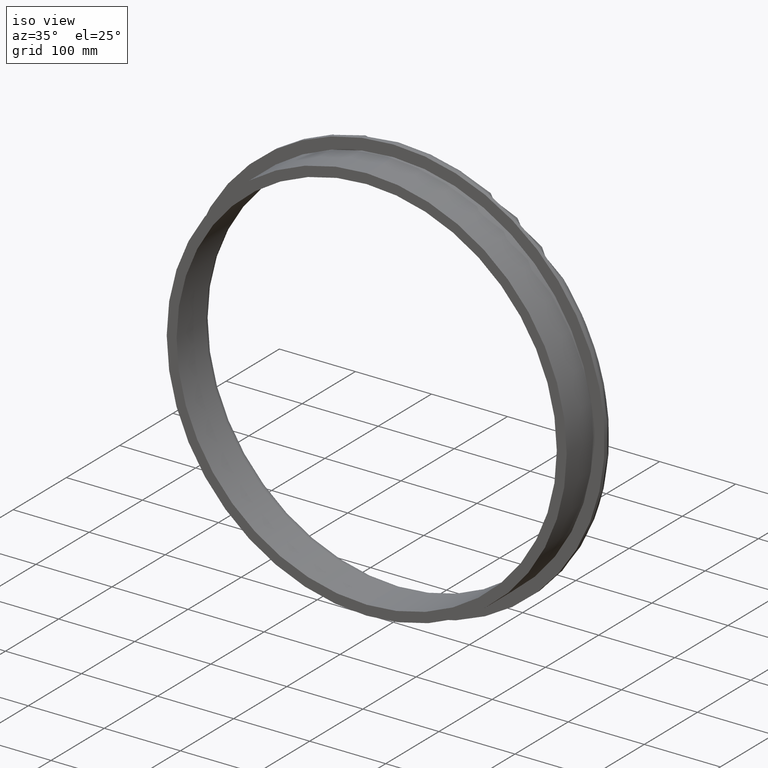
[diagram: clean part render]
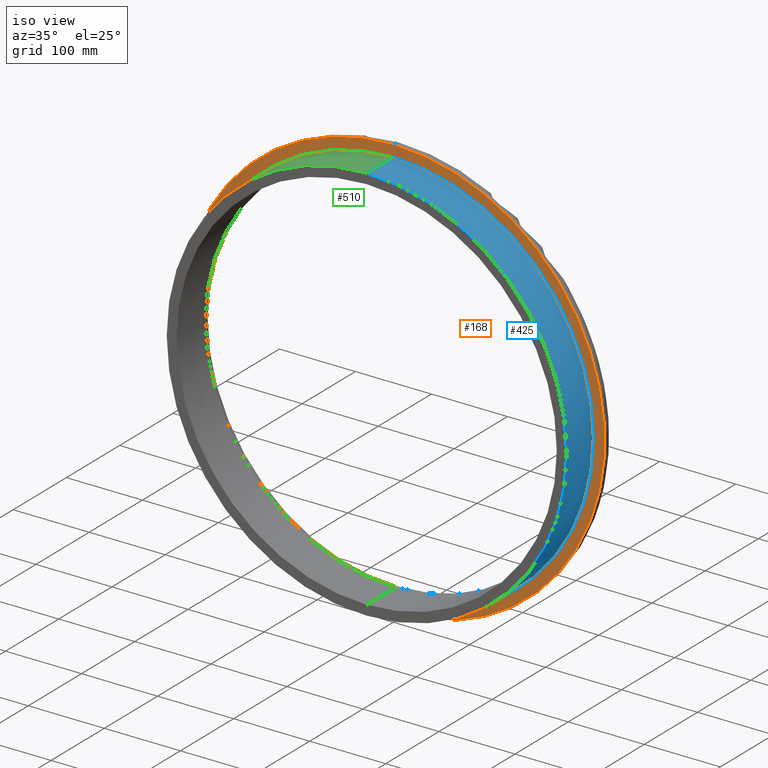
[diagram: same view with three faces highlighted in distinct colors, each labeled with its STEP entity id]
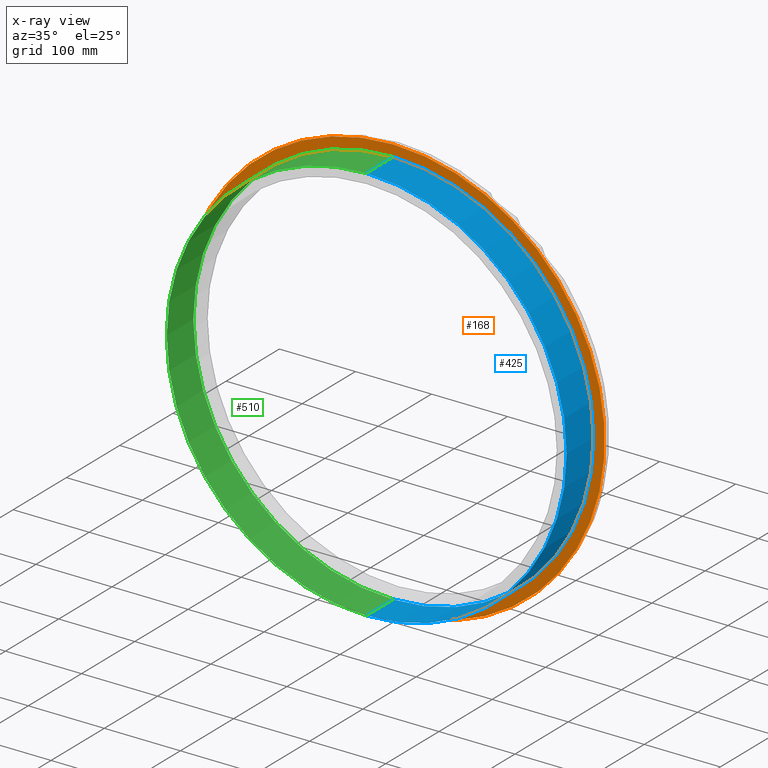
[diagram: x-ray of the same camera — body ghosted, the three highlighted faces saturated]
A machine part, iso view with three faces highlighted in distinct colors.
The next image is the same camera in x-ray (body ghosted, the three faces saturated) — at least one of them is partly hidden behind the body in this view.
Their STEP definitions:

[orange] entity #168 — the highlighted planar face has unit normal (0, 1, 0).
#8 = DIRECTION ( 'NONE',  ( 0.0000000000000000000, -0.0000000000000000000, 1.000000000000000000 ) ) ;
#27 = CIRCLE ( 'NONE', #351, 278.0000000000000000 ) ;
#46 = AXIS2_PLACEMENT_3D ( 'NONE', #275, #450, #410 ) ;
#52 = CARTESIAN_POINT ( 'NONE',  ( 0.0000000000000000000, 0.0000000000000000000, 0.0000000000000000000 ) ) ;
#56 = CARTESIAN_POINT ( 'NONE',  ( 0.0000000000000000000, 0.0000000000000000000, 0.0000000000000000000 ) ) ;
#77 = ORIENTED_EDGE ( 'NONE', *, *, #304, .F. ) ;
#87 = ORIENTED_EDGE ( 'NONE', *, *, #159, .T. ) ;
#117 = EDGE_CURVE ( 'NONE', #405, #456, #150, .T. ) ;
#119 = AXIS2_PLACEMENT_3D ( 'NONE', #52, #407, #310 ) ;
#131 = DIRECTION ( 'NONE',  ( 0.0000000000000000000, 1.000000000000000000, 0.0000000000000000000 ) ) ;
#150 = CIRCLE ( 'NONE', #302, 278.0000000000000000 ) ;
#159 = EDGE_CURVE ( 'NONE', #228, #330, #300, .T. ) ;
#168 = ADVANCED_FACE ( 'NONE', ( #364, #178 ), #525, .F. ) ;
#178 = FACE_OUTER_BOUND ( 'NONE', #183, .T. ) ;
#183 = EDGE_LOOP ( 'NONE', ( #461, #77 ) ) ;
#228 = VERTEX_POINT ( 'NONE', #520 ) ;
#231 = DIRECTION ( 'NONE',  ( 0.0000000000000000000, 0.0000000000000000000, 1.000000000000000000 ) ) ;
#240 = CARTESIAN_POINT ( 'NONE',  ( 0.0000000000000000000, 0.0000000000000000000, 0.0000000000000000000 ) ) ;
#246 = EDGE_CURVE ( 'NONE', #330, #228, #423, .T. ) ;
#272 = DIRECTION ( 'NONE',  ( 0.0000000000000000000, 1.000000000000000000, 0.0000000000000000000 ) ) ;
#275 = CARTESIAN_POINT ( 'NONE',  ( 0.0000000000000000000, 0.0000000000000000000, 0.0000000000000000000 ) ) ;
#300 = CIRCLE ( 'NONE', #46, 263.0000000000000568 ) ;
#302 = AXIS2_PLACEMENT_3D ( 'NONE', #56, #131, #231 ) ;
#304 = EDGE_CURVE ( 'NONE', #456, #405, #27, .T. ) ;
#310 = DIRECTION ( 'NONE',  ( 0.0000000000000000000, 0.0000000000000000000, 1.000000000000000000 ) ) ;
#317 = ORIENTED_EDGE ( 'NONE', *, *, #246, .T. ) ;
#327 = CARTESIAN_POINT ( 'NONE',  ( 0.0000000000000000000, 0.0000000000000000000, 263.0000000000000568 ) ) ;
#330 = VERTEX_POINT ( 'NONE', #327 ) ;
#334 = DIRECTION ( 'NONE',  ( 0.0000000000000000000, 0.0000000000000000000, 1.000000000000000000 ) ) ;
#351 = AXIS2_PLACEMENT_3D ( 'NONE', #240, #528, #334 ) ;
#364 = FACE_BOUND ( 'NONE', #373, .T. ) ;
#373 = EDGE_LOOP ( 'NONE', ( #317, #87 ) ) ;
#382 = AXIS2_PLACEMENT_3D ( 'NONE', #404, #272, #8 ) ;
#404 = CARTESIAN_POINT ( 'NONE',  ( 0.0000000000000000000, 0.0000000000000000000, 0.0000000000000000000 ) ) ;
#405 = VERTEX_POINT ( 'NONE', #454 ) ;
#407 = DIRECTION ( 'NONE',  ( 0.0000000000000000000, 1.000000000000000000, 0.0000000000000000000 ) ) ;
#410 = DIRECTION ( 'NONE',  ( 0.0000000000000000000, 0.0000000000000000000, 1.000000000000000000 ) ) ;
#423 = CIRCLE ( 'NONE', #119, 263.0000000000000568 ) ;
#450 = DIRECTION ( 'NONE',  ( 0.0000000000000000000, 1.000000000000000000, 0.0000000000000000000 ) ) ;
#454 = CARTESIAN_POINT ( 'NONE',  ( 0.0000000000000000000, 0.0000000000000000000, -278.0000000000000000 ) ) ;
#456 = VERTEX_POINT ( 'NONE', #518 ) ;
#461 = ORIENTED_EDGE ( 'NONE', *, *, #117, .F. ) ;
#518 = CARTESIAN_POINT ( 'NONE',  ( 3.404518101629642167E-14, 0.0000000000000000000, 278.0000000000000000 ) ) ;
#520 = CARTESIAN_POINT ( 'NONE',  ( 3.220821081757540076E-14, 0.0000000000000000000, -263.0000000000000568 ) ) ;
#525 = PLANE ( 'NONE',  #382 ) ;
#528 = DIRECTION ( 'NONE',  ( 0.0000000000000000000, 1.000000000000000000, 0.0000000000000000000 ) ) ;

[blue] entity #425 — the highlighted cylindrical surface (partial cylindrical patch) has radius 263 mm, axis along (0, 1, 0).
#1 = LINE ( 'NONE', #325, #536 ) ;
#5 = LINE ( 'NONE', #177, #359 ) ;
#17 = CIRCLE ( 'NONE', #515, 263.0000000000000568 ) ;
#51 = EDGE_CURVE ( 'NONE', #284, #258, #17, .T. ) ;
#52 = CARTESIAN_POINT ( 'NONE',  ( 0.0000000000000000000, 0.0000000000000000000, 0.0000000000000000000 ) ) ;
#84 = CARTESIAN_POINT ( 'NONE',  ( 3.220821081757540076E-14, -50.00000000000000000, -263.0000000000000568 ) ) ;
#99 = CARTESIAN_POINT ( 'NONE',  ( 0.0000000000000000000, -50.00000000000000000, 0.0000000000000000000 ) ) ;
#119 = AXIS2_PLACEMENT_3D ( 'NONE', #52, #407, #310 ) ;
#126 = DIRECTION ( 'NONE',  ( 0.0000000000000000000, 1.000000000000000000, 0.0000000000000000000 ) ) ;
#132 = EDGE_CURVE ( 'NONE', #284, #330, #1, .T. ) ;
#152 = EDGE_CURVE ( 'NONE', #258, #228, #5, .T. ) ;
#154 = ORIENTED_EDGE ( 'NONE', *, *, #246, .F. ) ;
#177 = CARTESIAN_POINT ( 'NONE',  ( 3.220821081757540076E-14, -50.00000000000000000, -263.0000000000000568 ) ) ;
#180 = DIRECTION ( 'NONE',  ( 0.0000000000000000000, 1.000000000000000000, 0.0000000000000000000 ) ) ;
#184 = ORIENTED_EDGE ( 'NONE', *, *, #132, .F. ) ;
#187 = AXIS2_PLACEMENT_3D ( 'NONE', #99, #416, #459 ) ;
#190 = ORIENTED_EDGE ( 'NONE', *, *, #51, .T. ) ;
#228 = VERTEX_POINT ( 'NONE', #520 ) ;
#246 = EDGE_CURVE ( 'NONE', #330, #228, #423, .T. ) ;
#258 = VERTEX_POINT ( 'NONE', #84 ) ;
#279 = DIRECTION ( 'NONE',  ( 0.0000000000000000000, 1.000000000000000000, 0.0000000000000000000 ) ) ;
#284 = VERTEX_POINT ( 'NONE', #406 ) ;
#310 = DIRECTION ( 'NONE',  ( 0.0000000000000000000, 0.0000000000000000000, 1.000000000000000000 ) ) ;
#314 = DIRECTION ( 'NONE',  ( 0.0000000000000000000, 0.0000000000000000000, 1.000000000000000000 ) ) ;
#321 = ORIENTED_EDGE ( 'NONE', *, *, #152, .T. ) ;
#325 = CARTESIAN_POINT ( 'NONE',  ( 0.0000000000000000000, -50.00000000000000000, 263.0000000000000568 ) ) ;
#327 = CARTESIAN_POINT ( 'NONE',  ( 0.0000000000000000000, 0.0000000000000000000, 263.0000000000000568 ) ) ;
#330 = VERTEX_POINT ( 'NONE', #327 ) ;
#333 = EDGE_LOOP ( 'NONE', ( #190, #321, #154, #184 ) ) ;
#359 = VECTOR ( 'NONE', #279, 1000.000000000000000 ) ;
#383 = CYLINDRICAL_SURFACE ( 'NONE', #187, 263.0000000000000568 ) ;
#406 = CARTESIAN_POINT ( 'NONE',  ( 0.0000000000000000000, -50.00000000000000000, 263.0000000000000568 ) ) ;
#407 = DIRECTION ( 'NONE',  ( 0.0000000000000000000, 1.000000000000000000, 0.0000000000000000000 ) ) ;
#416 = DIRECTION ( 'NONE',  ( 0.0000000000000000000, 1.000000000000000000, 0.0000000000000000000 ) ) ;
#423 = CIRCLE ( 'NONE', #119, 263.0000000000000568 ) ;
#425 = ADVANCED_FACE ( 'NONE', ( #457 ), #383, .T. ) ;
#457 = FACE_OUTER_BOUND ( 'NONE', #333, .T. ) ;
#459 = DIRECTION ( 'NONE',  ( 0.0000000000000000000, 0.0000000000000000000, 1.000000000000000000 ) ) ;
#483 = CARTESIAN_POINT ( 'NONE',  ( 0.0000000000000000000, -50.00000000000000000, 0.0000000000000000000 ) ) ;
#515 = AXIS2_PLACEMENT_3D ( 'NONE', #483, #126, #314 ) ;
#520 = CARTESIAN_POINT ( 'NONE',  ( 3.220821081757540076E-14, 0.0000000000000000000, -263.0000000000000568 ) ) ;
#536 = VECTOR ( 'NONE', #180, 1000.000000000000000 ) ;

[green] entity #510 — the highlighted cylindrical surface (partial cylindrical patch) has radius 263 mm, axis along (0, 1, 0).
#1 = LINE ( 'NONE', #325, #536 ) ;
#5 = LINE ( 'NONE', #177, #359 ) ;
#13 = DIRECTION ( 'NONE',  ( 0.0000000000000000000, 1.000000000000000000, 0.0000000000000000000 ) ) ;
#46 = AXIS2_PLACEMENT_3D ( 'NONE', #275, #450, #410 ) ;
#49 = CARTESIAN_POINT ( 'NONE',  ( 0.0000000000000000000, -50.00000000000000000, 0.0000000000000000000 ) ) ;
#55 = DIRECTION ( 'NONE',  ( 0.0000000000000000000, 1.000000000000000000, 0.0000000000000000000 ) ) ;
#73 = AXIS2_PLACEMENT_3D ( 'NONE', #49, #55, #521 ) ;
#84 = CARTESIAN_POINT ( 'NONE',  ( 3.220821081757540076E-14, -50.00000000000000000, -263.0000000000000568 ) ) ;
#97 = ORIENTED_EDGE ( 'NONE', *, *, #445, .T. ) ;
#132 = EDGE_CURVE ( 'NONE', #284, #330, #1, .T. ) ;
#152 = EDGE_CURVE ( 'NONE', #258, #228, #5, .T. ) ;
#159 = EDGE_CURVE ( 'NONE', #228, #330, #300, .T. ) ;
#177 = CARTESIAN_POINT ( 'NONE',  ( 3.220821081757540076E-14, -50.00000000000000000, -263.0000000000000568 ) ) ;
#180 = DIRECTION ( 'NONE',  ( 0.0000000000000000000, 1.000000000000000000, 0.0000000000000000000 ) ) ;
#185 = DIRECTION ( 'NONE',  ( 0.0000000000000000000, 0.0000000000000000000, 1.000000000000000000 ) ) ;
#228 = VERTEX_POINT ( 'NONE', #520 ) ;
#258 = VERTEX_POINT ( 'NONE', #84 ) ;
#275 = CARTESIAN_POINT ( 'NONE',  ( 0.0000000000000000000, 0.0000000000000000000, 0.0000000000000000000 ) ) ;
#277 = EDGE_LOOP ( 'NONE', ( #490, #97, #496, #452 ) ) ;
#279 = DIRECTION ( 'NONE',  ( 0.0000000000000000000, 1.000000000000000000, 0.0000000000000000000 ) ) ;
#284 = VERTEX_POINT ( 'NONE', #406 ) ;
#300 = CIRCLE ( 'NONE', #46, 263.0000000000000568 ) ;
#325 = CARTESIAN_POINT ( 'NONE',  ( 0.0000000000000000000, -50.00000000000000000, 263.0000000000000568 ) ) ;
#327 = CARTESIAN_POINT ( 'NONE',  ( 0.0000000000000000000, 0.0000000000000000000, 263.0000000000000568 ) ) ;
#330 = VERTEX_POINT ( 'NONE', #327 ) ;
#359 = VECTOR ( 'NONE', #279, 1000.000000000000000 ) ;
#363 = CYLINDRICAL_SURFACE ( 'NONE', #73, 263.0000000000000568 ) ;
#367 = FACE_OUTER_BOUND ( 'NONE', #277, .T. ) ;
#375 = CARTESIAN_POINT ( 'NONE',  ( 0.0000000000000000000, -50.00000000000000000, 0.0000000000000000000 ) ) ;
#406 = CARTESIAN_POINT ( 'NONE',  ( 0.0000000000000000000, -50.00000000000000000, 263.0000000000000568 ) ) ;
#410 = DIRECTION ( 'NONE',  ( 0.0000000000000000000, 0.0000000000000000000, 1.000000000000000000 ) ) ;
#445 = EDGE_CURVE ( 'NONE', #258, #284, #475, .T. ) ;
#450 = DIRECTION ( 'NONE',  ( 0.0000000000000000000, 1.000000000000000000, 0.0000000000000000000 ) ) ;
#452 = ORIENTED_EDGE ( 'NONE', *, *, #159, .F. ) ;
#475 = CIRCLE ( 'NONE', #504, 263.0000000000000568 ) ;
#490 = ORIENTED_EDGE ( 'NONE', *, *, #152, .F. ) ;
#496 = ORIENTED_EDGE ( 'NONE', *, *, #132, .T. ) ;
#504 = AXIS2_PLACEMENT_3D ( 'NONE', #375, #13, #185 ) ;
#510 = ADVANCED_FACE ( 'NONE', ( #367 ), #363, .T. ) ;
#520 = CARTESIAN_POINT ( 'NONE',  ( 3.220821081757540076E-14, 0.0000000000000000000, -263.0000000000000568 ) ) ;
#521 = DIRECTION ( 'NONE',  ( 0.0000000000000000000, 0.0000000000000000000, 1.000000000000000000 ) ) ;
#536 = VECTOR ( 'NONE', #180, 1000.000000000000000 ) ;